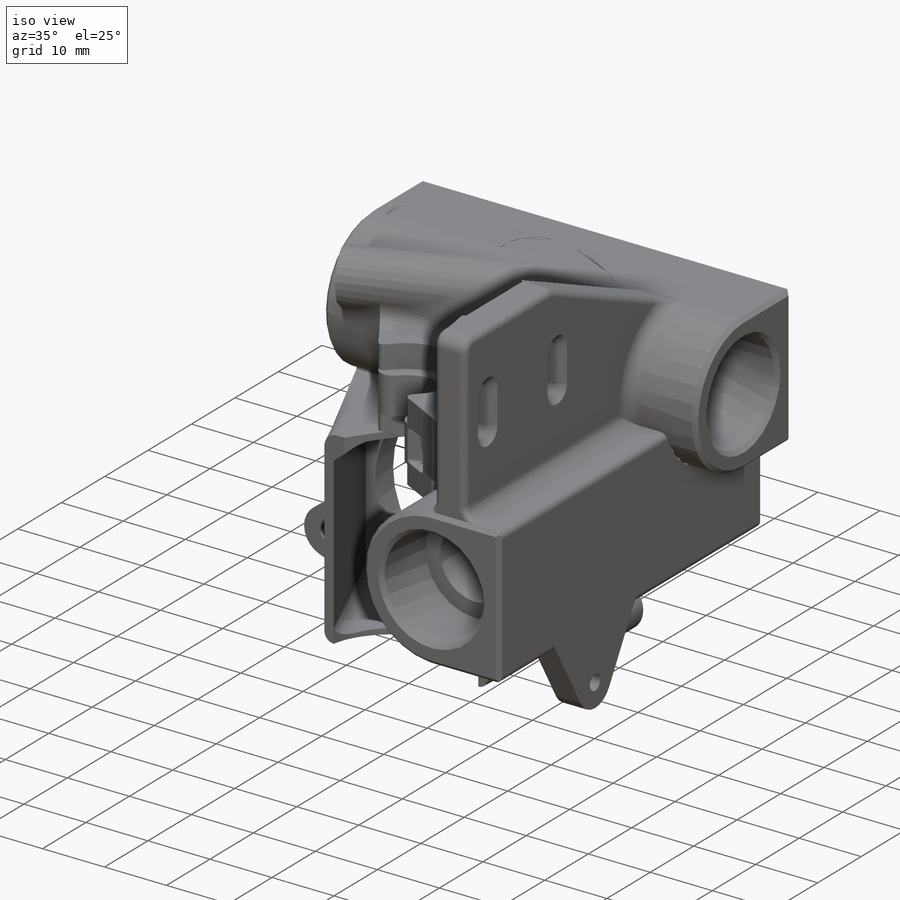
[diagram: iso view]
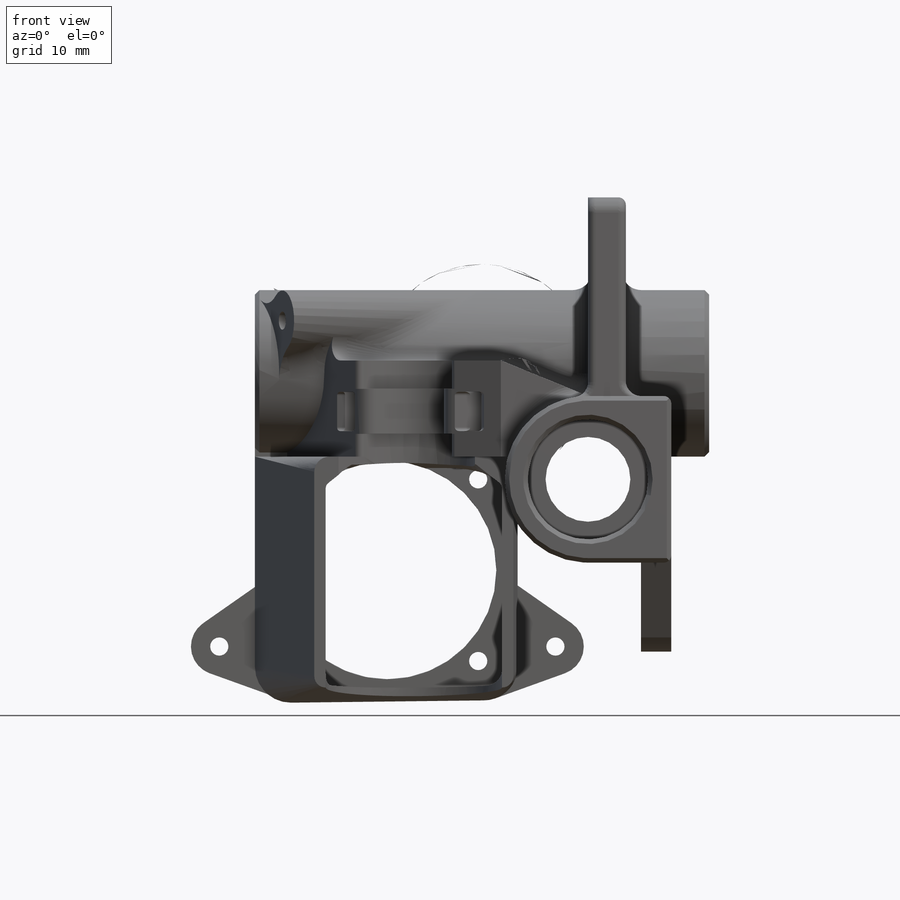
[diagram: front view]
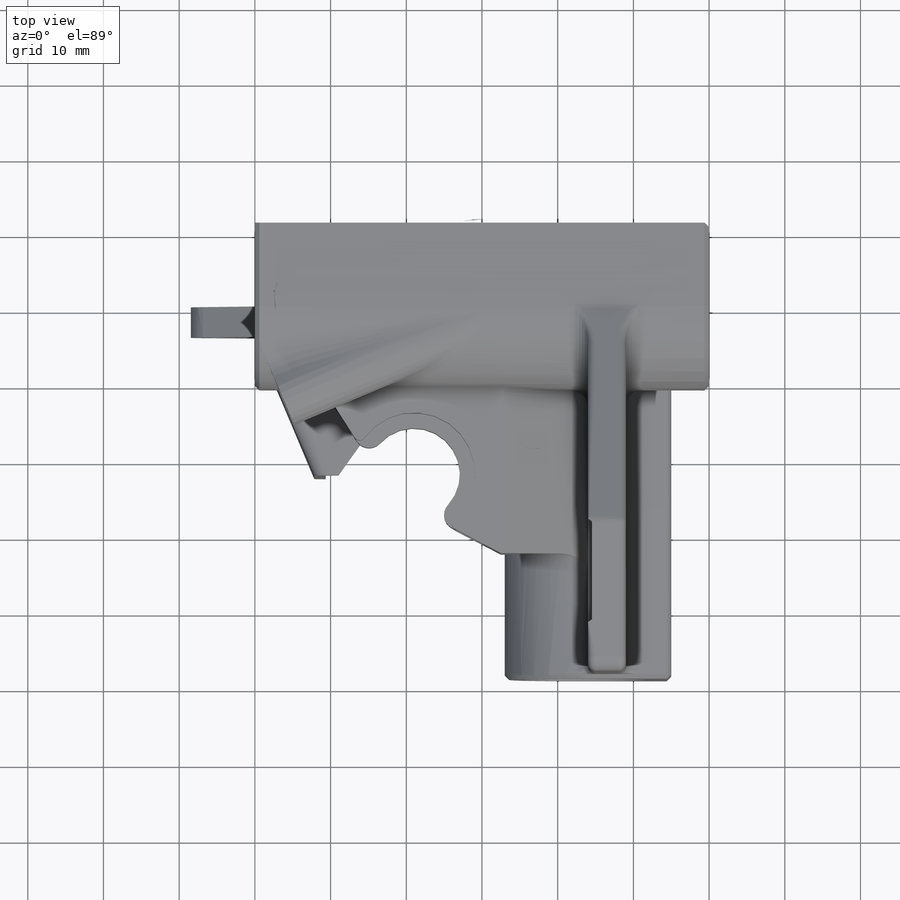
[diagram: top view]
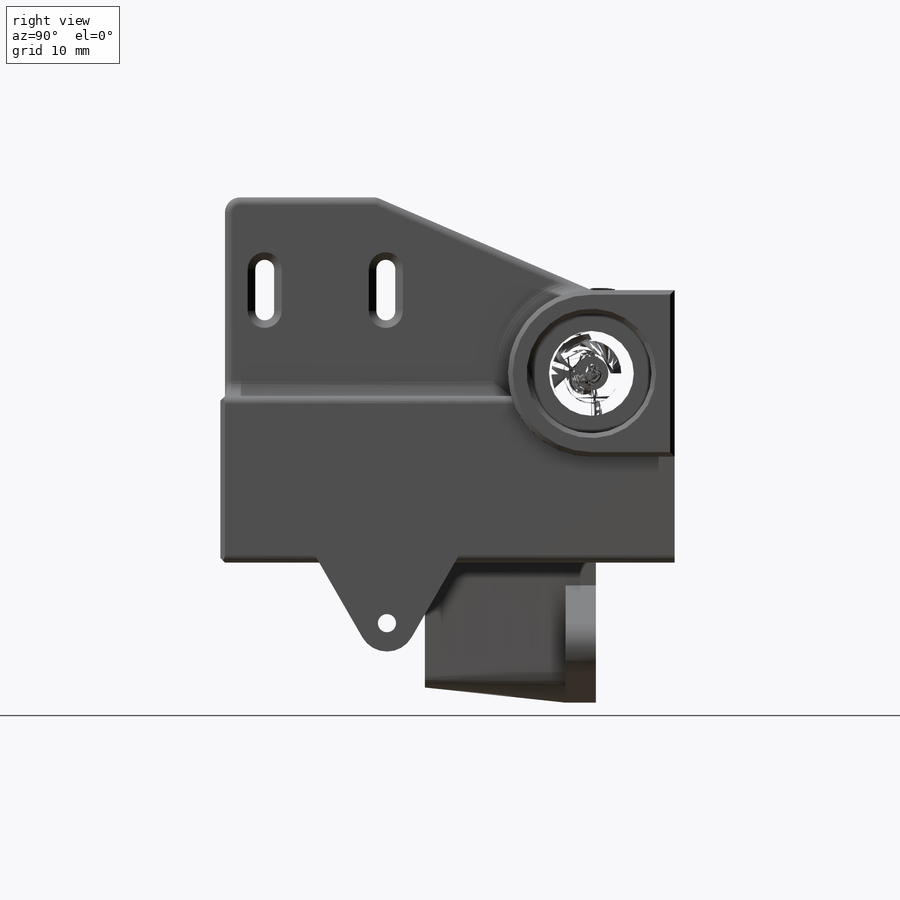
[diagram: right view]
SOLIDWORKS PART (.sldprt)
format: sldprt  version: not decoded by parser v0  size: 3,297,280 bytes
history: native  units: mm
features: sketch x39, extrude x21, cut_extrude x11, plane x6, fillet x5, chamfer x3, material x1, cut_revolve x1 (+13 scaffold rows collapsed)
feature tree (100):
  scaffold x13  (default folders/planes/origin — collapsed)
  material  "ABS"
  sketch  "Sketch1"  dims[D1=11.2mm D2=15.9mm D3=22.0mm]
  extrude  "Boss-Extrude1"  Depth=60mm
  plane  "Plane1"  Offset=30mm
  sketch  "Sketch2"  dims[c1.D1=~13.701419mm c1.D2=11.2mm c1.D3=15.9mm c1.D4=22.0mm c1.D5=22.0mm c2.D1=14.0mm c2.D5=16.0mm c3.D1=14.0mm]
  extrude  "Boss-Extrude3"  Depth=60mm
  extrude  "Axis3"  [1 undecoded]
  cut_extrude  "Cut-Extrude1"  [1 undecoded]
  sketch  "Sketch1<4>"  dims[D1=10.0mm]
  cut_extrude  "Cut-Extrude2"  [1 undecoded]
  sketch  "Sketch1<5>"  dims[D1=10.0mm]
  cut_extrude  "Cut-Extrude3"  [1 undecoded]
  sketch  "Sketch1<6>"  dims[D1=40.0mm]
  cut_extrude  "Cut-Extrude4"  [1 undecoded]
  sketch  "Sketch2<3>"  dims[D1=10.0mm]
  cut_extrude  "Cut-Extrude5"  [1 undecoded]
  sketch  "Sketch2<4>"  dims[D1=10.0mm]
  cut_extrude  "Cut-Extrude6"  [1 undecoded]
  sketch  "Sketch2<5>"  dims[D1=40.0mm]
  sketch  "Sketch3"  dims[c1.D2=23.0mm c1.D3=12.0mm c1.D4=10.5mm c2.D3=11.5mm c2.D1=0.075mm]
  extrude  "Boss-Extrude4"  Depth=5.95mm
  sketch  "Sketch9"  dims[D1=0.0mm]
  extrude  "Boss-Extrude5"  [1 undecoded]
  plane  "Plane2"
  sketch  "Sketch10"
  extrude  "Boss-Extrude6"  [1 undecoded]
  sketch  "Sketch5"
  sketch  "Sketch7"  dims[D2=11.0mm D1=0.075mm]
  sketch  "Sketch6"  dims[D2=10.0mm D1=0.075mm]
  extrude  "Boss-Extrude7"  [1 undecoded]
  sketch  "Sketch11"  dims[D1=0.0mm]
  extrude  "Boss-Extrude8"  [1 undecoded]
  sketch  "Sketch12"  dims[D1=0.0mm]
  extrude  "Boss-Extrude9"  [1 undecoded]
  extrude  "Boss-Extrude11"  [1 undecoded]
  sketch  "Sketch14"  dims[D1=0.0mm]
  extrude  "Boss-Extrude12"  [1 undecoded]
  sketch  "Sketch15"
  extrude  "Boss-Extrude13"  [1 undecoded]
  extrude  "Axis4"  [1 undecoded]
  plane  "Plane3"
  sketch  "Sketch19"  dims[D1=2.2mm D2=5.2mm D3=10.0mm]
  cut_revolve  "Cut-Revolve1"  Angle=360deg
  chamfer  "Chamfer1"  Distance=1mm Angle=45deg
  fillet  "Fillet1"  Radius=0.75mm
  fillet  "Fillet2"  Radius=0.5mm
  sketch  "Sketch20"  dims[c1.D4=2.4mm c1.D5=2.4mm c1.D6=2.4mm c1.D3=2.0mm c2.D4=2.3mm c2.D5=0.2mm c2.D6=~6.814413mm c2.D1=0.2mm c2.D2=0.2mm]
  extrude  "Boss-Extrude14"  Depth=4mm
  plane  "Plane4"
  sketch  "Sketch23"  dims[D3=2.0mm D1=0.5mm D2=1.5mm]
  sketch  "Sketch24"  dims[D1=0.0mm]
  sketch  "3DSketch1"
  sketch  "Sketch25"  dims[D1=0.0mm]
  extrude  "Boss-Extrude17"  [1 undecoded]
  sketch  "Sketch27"  dims[D1=1.5mm]
  sketch  "Sketch28"  dims[D2=2.0mm D1=0.5mm]
  sketch  "3DSketch2"
  sketch  "Sketch30"
  cut_extrude  "Cut-Extrude7"  [1 undecoded]
  sketch  "Sketch31"  dims[D1=0.0mm D2=0.5mm]
  cut_extrude  "Cut-Extrude8"  Depth=2mm
  sketch  "Sketch45"  dims[D1=2.4mm D2=8.0mm]
  extrude  "Boss-Extrude30"  [1 undecoded]
  cut_extrude  "Cut-Extrude9"  [1 undecoded]
  sketch  "Sketch45<4>"  dims[D1=20.0mm]
  plane  "Plane5"  Offset=25mm
  sketch  "Sketch47"  dims[c1.D1=2.4mm c1.D2=7.5mm c1.D3=11.2mm c1.D4=~12.245584mm c2.D4=20.0deg c2.D5=11.0mm c3.D5=25.0deg]
  sketch  "Sketch48"  dims[c1.D3=2.4mm c1.D4=7.5mm c1.D5=2.4mm c1.D1=~13.18649mm c2.D1=30.0deg c2.D2=~11.690832mm c3.D2=30.0deg c3.D5=8.0mm c3.D6=22.0mm]
  extrude  "Boss-Extrude32"  Depth=4mm
  sketch  "Sketch49"  dims[c1.D1=2.4mm c1.D2=7.5mm c1.D3=5.0mm c1.D4=7.0mm c1.D5=~18.863507mm c2.D5=55.0deg]
  extrude  "Boss-Extrude33"  [1 undecoded]
  fillet  "Fillet3"  Radius=5mm
  chamfer  "Chamfer2"  Distance=0.6mm Angle=45deg
  fillet  "Fillet6"  Radius=1mm
  plane  "Plane6"
  sketch  "Sketch50"  dims[c1.D3=2.5mm c1.D4=2.5mm c1.D5=2.5mm c1.D2=2.5mm c1.D8=1.25mm c1.D1=~23.257319mm c2.D1=50.0deg c2.D2=30.0mm c3.D1=~18.259949mm c4.D1=40.0deg c5.D1=20.0mm c5.D4=~4.666977mm c6.D4=2.0deg c7.D4=5.5mm c7.D5=3.25mm c7.D6=4.0mm c8.D5=14.0mm c8.D2=9.5mm c8.D8=13.5mm c8.D7=2.0]
  extrude  "Boss-Extrude34"  Depth=5mm
  sketch  "Sketch55"  dims[D1=16.5mm D2=13.5mm D3=0.75mm D4=0.75mm D5=0.75mm D6=8.5mm]
  cut_extrude  "Cut-Extrude12"  Depth=1mm
  sketch  "Sketch54"  dims[D1=6.5mm D2=6.5mm D3=13.0mm D4=12.5mm]
  cut_extrude  "Cut-Extrude11"  Depth=0.5mm
  fillet  "Fillet8"  Radius=2mm
  chamfer  "Chamfer3"  Distance=1mm Angle=45deg
  sketch  "Sketch57"  dims[D1=0.0mm D2=0.6mm D3=1.0mm]
  extrude  "Boss-Extrude36"  Depth=0.3mm
  sketch  "Sketch56"  dims[D1=15.0mm D2=15.0mm D3=15.0mm]
  extrude  "Boss-Extrude35"  Depth=0.5mm
decode coverage: 53 of 80 modeling features carry decoded parameters
note: ~ marks probable driven/reference dimensions
note: 21 parameter values undecoded
summary: no parameter record found for 21 features
note: suppression state not decoded; provenance and decode notes live in map.json
